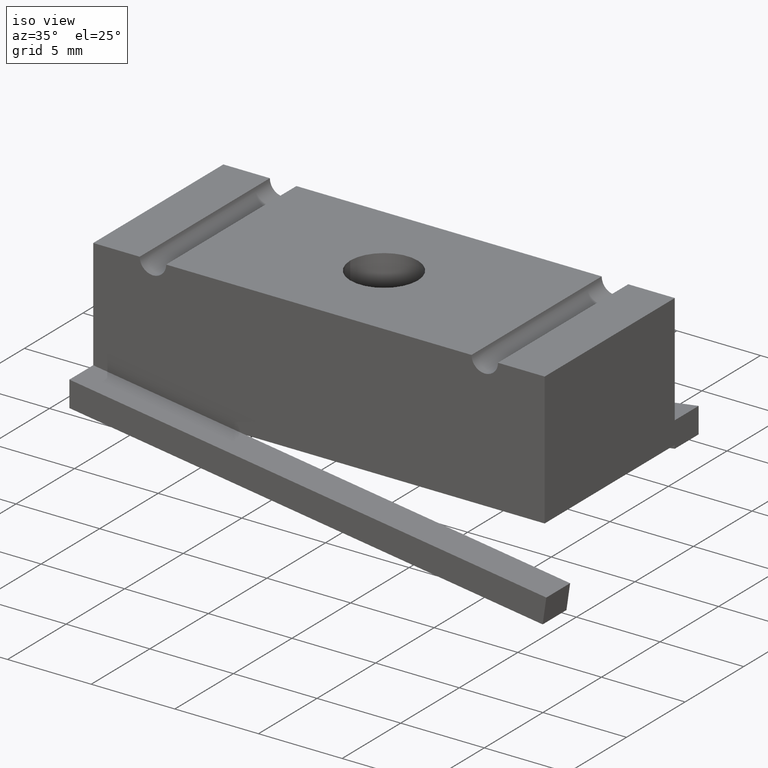
[diagram: clean part render]
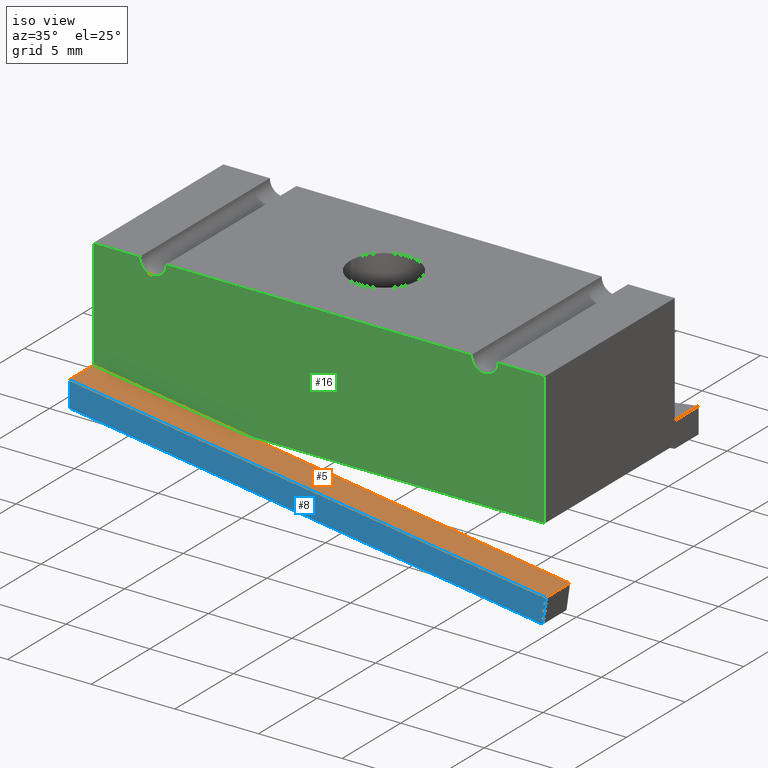
[diagram: same view with three faces highlighted in distinct colors, each labeled with its STEP entity id]
A machine part, iso view with three faces highlighted in distinct colors.
Their STEP definitions:

[orange] entity #5 — the highlighted planar face has unit normal (-0.1441, 0, -0.9896).
#5 = ADVANCED_FACE ( 'NONE', ( #807 ), #298, .F. ) ;
#146 = ORIENTED_EDGE ( 'NONE', *, *, #675, .T. ) ;
#147 = ORIENTED_EDGE ( 'NONE', *, *, #687, .F. ) ;
#149 = ORIENTED_EDGE ( 'NONE', *, *, #672, .F. ) ;
#150 = ORIENTED_EDGE ( 'NONE', *, *, #694, .T. ) ;
#151 = ORIENTED_EDGE ( 'NONE', *, *, #729, .T. ) ;
#194 = EDGE_LOOP ( 'NONE', ( #150, #151, #147, #149, #146 ) ) ;
#264 = VERTEX_POINT ( 'NONE', #392 ) ;
#270 = VERTEX_POINT ( 'NONE', #398 ) ;
#272 = VERTEX_POINT ( 'NONE', #400 ) ;
#282 = VERTEX_POINT ( 'NONE', #410 ) ;
#285 = VERTEX_POINT ( 'NONE', #413 ) ;
#296 = CARTESIAN_POINT ( 'NONE',  ( -0.5312499999999998900, -0.2987499999999999600, -0.2600000000000000100 ) ) ;
#298 = PLANE ( 'NONE',  #735 ) ;
#301 = DIRECTION ( 'NONE',  ( -0.1441360476933149800, 0.0000000000000000000, -0.9895578809525750200 ) ) ;
#302 = DIRECTION ( 'NONE',  ( -0.9895578809525749100, 0.0000000000000000000, 0.1441360476933149500 ) ) ;
#392 = CARTESIAN_POINT ( 'NONE',  ( -0.1708142201834860800, -0.2187499999999999400, -0.3125000000000000000 ) ) ;
#398 = CARTESIAN_POINT ( 'NONE',  ( -0.5312499999999998900, -0.2187499999999999400, -0.2600000000000000100 ) ) ;
#400 = CARTESIAN_POINT ( 'NONE',  ( -0.5312499999999998900, -0.2987499999999999600, -0.2600000000000000100 ) ) ;
#410 = CARTESIAN_POINT ( 'NONE',  ( 0.5912500000000000500, -0.2187499999999999400, -0.4234999999999999900 ) ) ;
#413 = CARTESIAN_POINT ( 'NONE',  ( 0.5912500000000000500, -0.2987499999999999600, -0.4234999999999999900 ) ) ;
#467 = CARTESIAN_POINT ( 'NONE',  ( -0.5312499999999998900, -0.2987499999999999600, -0.2600000000000000100 ) ) ;
#469 = CARTESIAN_POINT ( 'NONE',  ( 0.5912500000000000500, -0.2987499999999999600, -0.4234999999999999900 ) ) ;
#470 = DIRECTION ( 'NONE',  ( -0.9895578809525749100, -0.0000000000000000000, 0.1441360476933149500 ) ) ;
#475 = DIRECTION ( 'NONE',  ( -0.0000000000000000000, 1.000000000000000000, -0.0000000000000000000 ) ) ;
#498 = CARTESIAN_POINT ( 'NONE',  ( -0.5312499999999998900, -0.2987499999999999600, -0.2600000000000000100 ) ) ;
#499 = DIRECTION ( 'NONE',  ( -0.0000000000000000000, 1.000000000000000000, -0.0000000000000000000 ) ) ;
#514 = CARTESIAN_POINT ( 'NONE',  ( -0.5312499999999998900, -0.2187499999999999400, -0.2600000000000000100 ) ) ;
#515 = DIRECTION ( 'NONE',  ( -0.9895578809525749100, -0.0000000000000000000, 0.1441360476933149500 ) ) ;
#548 = DIRECTION ( 'NONE',  ( -0.9895578809525749100, -0.0000000000000000000, 0.1441360476933149500 ) ) ;
#587 = LINE ( 'NONE', #469, #595 ) ;
#591 = VECTOR ( 'NONE', #470, 39.37007874015748900 ) ;
#595 = VECTOR ( 'NONE', #475, 39.37007874015748100 ) ;
#622 = LINE ( 'NONE', #514, #623 ) ;
#623 = VECTOR ( 'NONE', #515, 39.37007874015748900 ) ;
#645 = LINE ( 'NONE', #787, #646 ) ;
#646 = VECTOR ( 'NONE', #548, 39.37007874015748900 ) ;
#672 = EDGE_CURVE ( 'NONE', #285, #272, #781, .T. ) ;
#675 = EDGE_CURVE ( 'NONE', #285, #282, #587, .T. ) ;
#687 = EDGE_CURVE ( 'NONE', #272, #270, #802, .T. ) ;
#694 = EDGE_CURVE ( 'NONE', #282, #264, #622, .T. ) ;
#729 = EDGE_CURVE ( 'NONE', #264, #270, #645, .T. ) ;
#735 = AXIS2_PLACEMENT_3D ( 'NONE', #296, #301, #302 ) ;
#781 = LINE ( 'NONE', #467, #591 ) ;
#787 = CARTESIAN_POINT ( 'NONE',  ( -0.5312499999999998900, -0.2187499999999999400, -0.2600000000000000100 ) ) ;
#802 = LINE ( 'NONE', #498, #803 ) ;
#803 = VECTOR ( 'NONE', #499, 39.37007874015748100 ) ;
#807 = FACE_OUTER_BOUND ( 'NONE', #194, .T. ) ;

[blue] entity #8 — the highlighted planar face has unit normal (0, -1, 0).
#8 = ADVANCED_FACE ( 'NONE', ( #809 ), #308, .T. ) ;
#131 = ORIENTED_EDGE ( 'NONE', *, *, #660, .T. ) ;
#132 = ORIENTED_EDGE ( 'NONE', *, *, #672, .T. ) ;
#142 = ORIENTED_EDGE ( 'NONE', *, *, #686, .T. ) ;
#143 = ORIENTED_EDGE ( 'NONE', *, *, #683, .T. ) ;
#198 = EDGE_LOOP ( 'NONE', ( #142, #143, #131, #132 ) ) ;
#259 = VERTEX_POINT ( 'NONE', #387 ) ;
#272 = VERTEX_POINT ( 'NONE', #400 ) ;
#284 = VERTEX_POINT ( 'NONE', #412 ) ;
#285 = VERTEX_POINT ( 'NONE', #413 ) ;
#303 = CARTESIAN_POINT ( 'NONE',  ( -0.5312499999999997800, -0.2987499999999999600, -0.3206331384499130900 ) ) ;
#308 = PLANE ( 'NONE',  #720 ) ;
#313 = DIRECTION ( 'NONE',  ( 0.0000000000000000000, -1.000000000000000000, 0.0000000000000000000 ) ) ;
#314 = DIRECTION ( 'NONE',  ( 0.0000000000000000000, -0.0000000000000000000, -1.000000000000000000 ) ) ;
#387 = CARTESIAN_POINT ( 'NONE',  ( -0.5312499999999998900, -0.2987499999999999600, -0.3206331384499130900 ) ) ;
#400 = CARTESIAN_POINT ( 'NONE',  ( -0.5312499999999998900, -0.2987499999999999600, -0.2600000000000000100 ) ) ;
#412 = CARTESIAN_POINT ( 'NONE',  ( 0.5826018371384011900, -0.2987499999999999600, -0.4828734728571544800 ) ) ;
#413 = CARTESIAN_POINT ( 'NONE',  ( 0.5912500000000000500, -0.2987499999999999600, -0.4234999999999999900 ) ) ;
#442 = CARTESIAN_POINT ( 'NONE',  ( 0.5912500000000000500, -0.2987499999999999600, -0.4234999999999999900 ) ) ;
#445 = DIRECTION ( 'NONE',  ( 0.1441360476933142800, -0.0000000000000000000, 0.9895578809525749100 ) ) ;
#467 = CARTESIAN_POINT ( 'NONE',  ( -0.5312499999999998900, -0.2987499999999999600, -0.2600000000000000100 ) ) ;
#470 = DIRECTION ( 'NONE',  ( -0.9895578809525749100, -0.0000000000000000000, 0.1441360476933149500 ) ) ;
#489 = CARTESIAN_POINT ( 'NONE',  ( 0.5826018371384011900, -0.2987499999999999600, -0.4828734728571544800 ) ) ;
#490 = DIRECTION ( 'NONE',  ( 0.9895578809525749100, -0.0000000000000000000, -0.1441360476933148100 ) ) ;
#493 = CARTESIAN_POINT ( 'NONE',  ( -0.5312499999999998900, -0.2987499999999999600, -0.3206331384499130900 ) ) ;
#497 = DIRECTION ( 'NONE',  ( -0.0000000000000000000, -0.0000000000000000000, -1.000000000000000000 ) ) ;
#591 = VECTOR ( 'NONE', #470, 39.37007874015748900 ) ;
#601 = LINE ( 'NONE', #493, #800 ) ;
#660 = EDGE_CURVE ( 'NONE', #284, #285, #830, .T. ) ;
#672 = EDGE_CURVE ( 'NONE', #285, #272, #781, .T. ) ;
#683 = EDGE_CURVE ( 'NONE', #259, #284, #794, .T. ) ;
#686 = EDGE_CURVE ( 'NONE', #272, #259, #601, .T. ) ;
#720 = AXIS2_PLACEMENT_3D ( 'NONE', #303, #313, #314 ) ;
#771 = VECTOR ( 'NONE', #445, 39.37007874015748900 ) ;
#781 = LINE ( 'NONE', #467, #591 ) ;
#794 = LINE ( 'NONE', #489, #795 ) ;
#795 = VECTOR ( 'NONE', #490, 39.37007874015748900 ) ;
#800 = VECTOR ( 'NONE', #497, 39.37007874015748100 ) ;
#809 = FACE_OUTER_BOUND ( 'NONE', #198, .T. ) ;
#830 = LINE ( 'NONE', #442, #771 ) ;

[green] entity #16 — the highlighted planar face has unit normal (0, -1, 0).
#16 = ADVANCED_FACE ( 'NONE', ( #47 ), #338, .T. ) ;
#47 = FACE_OUTER_BOUND ( 'NONE', #196, .T. ) ;
#152 = ORIENTED_EDGE ( 'NONE', *, *, #691, .F. ) ;
#156 = ORIENTED_EDGE ( 'NONE', *, *, #670, .F. ) ;
#158 = ORIENTED_EDGE ( 'NONE', *, *, #650, .F. ) ;
#159 = ORIENTED_EDGE ( 'NONE', *, *, #707, .F. ) ;
#160 = ORIENTED_EDGE ( 'NONE', *, *, #662, .F. ) ;
#161 = ORIENTED_EDGE ( 'NONE', *, *, #703, .F. ) ;
#162 = ORIENTED_EDGE ( 'NONE', *, *, #729, .F. ) ;
#163 = ORIENTED_EDGE ( 'NONE', *, *, #682, .T. ) ;
#164 = ORIENTED_EDGE ( 'NONE', *, *, #661, .T. ) ;
#165 = ORIENTED_EDGE ( 'NONE', *, *, #667, .F. ) ;
#166 = ORIENTED_EDGE ( 'NONE', *, *, #709, .F. ) ;
#196 = EDGE_LOOP ( 'NONE', ( #152, #156, #158, #159, #160, #161, #162, #163, #164, #165, #166 ) ) ;
#248 = VERTEX_POINT ( 'NONE', #379 ) ;
#249 = VERTEX_POINT ( 'NONE', #381 ) ;
#253 = VERTEX_POINT ( 'NONE', #383 ) ;
#254 = VERTEX_POINT ( 'NONE', #367 ) ;
#255 = VERTEX_POINT ( 'NONE', #384 ) ;
#260 = VERTEX_POINT ( 'NONE', #388 ) ;
#264 = VERTEX_POINT ( 'NONE', #392 ) ;
#265 = VERTEX_POINT ( 'NONE', #393 ) ;
#268 = VERTEX_POINT ( 'NONE', #396 ) ;
#270 = VERTEX_POINT ( 'NONE', #398 ) ;
#279 = VERTEX_POINT ( 'NONE', #407 ) ;
#336 = CARTESIAN_POINT ( 'NONE',  ( -0.5312499999999998900, -0.2187499999999999400, -0.3125000000000000000 ) ) ;
#338 = PLANE ( 'NONE',  #705 ) ;
#341 = DIRECTION ( 'NONE',  ( 0.0000000000000000000, -1.000000000000000000, 0.0000000000000000000 ) ) ;
#342 = DIRECTION ( 'NONE',  ( 0.0000000000000000000, -0.0000000000000000000, -1.000000000000000000 ) ) ;
#367 = CARTESIAN_POINT ( 'NONE',  ( -0.3906250000000000000, -0.2187499999999999400, -0.03124999999999997900 ) ) ;
#379 = CARTESIAN_POINT ( 'NONE',  ( 0.3903750000000000800, -0.2187499999999999400, -0.03124999999999997900 ) ) ;
#381 = CARTESIAN_POINT ( 'NONE',  ( 0.4216249999999999700, -0.2187499999999999400, 0.0000000000000000000 ) ) ;
#383 = CARTESIAN_POINT ( 'NONE',  ( -0.3593750000000000600, -0.2187499999999999400, 0.0000000000000000000 ) ) ;
#384 = CARTESIAN_POINT ( 'NONE',  ( -0.5312499999999998900, -0.2187499999999999400, 0.0000000000000000000 ) ) ;
#388 = CARTESIAN_POINT ( 'NONE',  ( 0.5312500000000001100, -0.2187499999999999400, -0.3125000000000000000 ) ) ;
#392 = CARTESIAN_POINT ( 'NONE',  ( -0.1708142201834860800, -0.2187499999999999400, -0.3125000000000000000 ) ) ;
#393 = CARTESIAN_POINT ( 'NONE',  ( 0.5312500000000001100, -0.2187499999999999400, 0.0000000000000000000 ) ) ;
#396 = CARTESIAN_POINT ( 'NONE',  ( -0.4218750000000000000, -0.2187499999999999400, 0.0000000000000000000 ) ) ;
#398 = CARTESIAN_POINT ( 'NONE',  ( -0.5312499999999998900, -0.2187499999999999400, -0.2600000000000000100 ) ) ;
#407 = CARTESIAN_POINT ( 'NONE',  ( 0.3591250000000000800, -0.2187499999999999400, 0.0000000000000000000 ) ) ;
#423 = CARTESIAN_POINT ( 'NONE',  ( -0.3906250000000000000, -0.2187499999999999400, 0.0000000000000000000 ) ) ;
#424 = DIRECTION ( 'NONE',  ( 0.0000000000000000000, -1.000000000000000000, 0.0000000000000000000 ) ) ;
#425 = DIRECTION ( 'NONE',  ( 0.0000000000000000000, 0.0000000000000000000, -1.000000000000000000 ) ) ;
#444 = CARTESIAN_POINT ( 'NONE',  ( 0.5312500000000001100, -0.2187499999999999400, -0.3125000000000000000 ) ) ;
#446 = CARTESIAN_POINT ( 'NONE',  ( -0.5312499999999998900, -0.2187499999999999400, 0.0000000000000000000 ) ) ;
#448 = DIRECTION ( 'NONE',  ( 0.0000000000000000000, 0.0000000000000000000, 1.000000000000000000 ) ) ;
#450 = DIRECTION ( 'NONE',  ( 1.000000000000000000, 0.0000000000000000000, 0.0000000000000000000 ) ) ;
#459 = CARTESIAN_POINT ( 'NONE',  ( -0.5312499999999998900, -0.2187499999999999400, 0.0000000000000000000 ) ) ;
#460 = DIRECTION ( 'NONE',  ( 1.000000000000000000, 0.0000000000000000000, 0.0000000000000000000 ) ) ;
#465 = CARTESIAN_POINT ( 'NONE',  ( -0.5312499999999998900, -0.2187499999999999400, 0.0000000000000000000 ) ) ;
#466 = DIRECTION ( 'NONE',  ( 1.000000000000000000, 0.0000000000000000000, 0.0000000000000000000 ) ) ;
#473 = CARTESIAN_POINT ( 'NONE',  ( -0.5312499999999998900, -0.2187499999999999400, -0.3125000000000000000 ) ) ;
#488 = DIRECTION ( 'NONE',  ( 1.000000000000000000, 0.0000000000000000000, 0.0000000000000000000 ) ) ;
#494 = CARTESIAN_POINT ( 'NONE',  ( 0.3903750000000000800, -0.2187499999999999400, 0.0000000000000000000 ) ) ;
#508 = DIRECTION ( 'NONE',  ( 0.0000000000000000000, -1.000000000000000000, 0.0000000000000000000 ) ) ;
#509 = DIRECTION ( 'NONE',  ( 0.0000000000000000000, 0.0000000000000000000, -1.000000000000000000 ) ) ;
#521 = CARTESIAN_POINT ( 'NONE',  ( -0.3906250000000000000, -0.2187499999999999400, 0.0000000000000000000 ) ) ;
#526 = CARTESIAN_POINT ( 'NONE',  ( 0.3903750000000000800, -0.2187499999999999400, 0.0000000000000000000 ) ) ;
#533 = CARTESIAN_POINT ( 'NONE',  ( -0.5312499999999998900, -0.2187499999999999400, -0.3125000000000000000 ) ) ;
#534 = DIRECTION ( 'NONE',  ( 0.0000000000000000000, 0.0000000000000000000, 1.000000000000000000 ) ) ;
#538 = DIRECTION ( 'NONE',  ( 0.0000000000000000000, -1.000000000000000000, 0.0000000000000000000 ) ) ;
#539 = DIRECTION ( 'NONE',  ( 0.0000000000000000000, 0.0000000000000000000, -1.000000000000000000 ) ) ;
#540 = DIRECTION ( 'NONE',  ( 0.0000000000000000000, -1.000000000000000000, 0.0000000000000000000 ) ) ;
#541 = DIRECTION ( 'NONE',  ( 0.0000000000000000000, 0.0000000000000000000, -1.000000000000000000 ) ) ;
#548 = DIRECTION ( 'NONE',  ( -0.9895578809525749100, -0.0000000000000000000, 0.1441360476933149500 ) ) ;
#588 = LINE ( 'NONE', #465, #589 ) ;
#589 = VECTOR ( 'NONE', #466, 39.37007874015748100 ) ;
#619 = CIRCLE ( 'NONE', #721, 0.03124999999999997900 ) ;
#635 = LINE ( 'NONE', #533, #636 ) ;
#636 = VECTOR ( 'NONE', #534, 39.37007874015748100 ) ;
#641 = CIRCLE ( 'NONE', #697, 0.03124999999999997900 ) ;
#643 = CIRCLE ( 'NONE', #759, 0.03124999999999997900 ) ;
#645 = LINE ( 'NONE', #787, #646 ) ;
#646 = VECTOR ( 'NONE', #548, 39.37007874015748900 ) ;
#650 = EDGE_CURVE ( 'NONE', #254, #253, #818, .T. ) ;
#661 = EDGE_CURVE ( 'NONE', #260, #265, #768, .T. ) ;
#662 = EDGE_CURVE ( 'NONE', #255, #268, #770, .T. ) ;
#667 = EDGE_CURVE ( 'NONE', #249, #265, #784, .T. ) ;
#670 = EDGE_CURVE ( 'NONE', #253, #279, #588, .T. ) ;
#682 = EDGE_CURVE ( 'NONE', #264, #260, #788, .T. ) ;
#691 = EDGE_CURVE ( 'NONE', #279, #248, #619, .T. ) ;
#697 = AXIS2_PLACEMENT_3D ( 'NONE', #521, #538, #539 ) ;
#703 = EDGE_CURVE ( 'NONE', #270, #255, #635, .T. ) ;
#705 = AXIS2_PLACEMENT_3D ( 'NONE', #336, #341, #342 ) ;
#707 = EDGE_CURVE ( 'NONE', #268, #254, #641, .T. ) ;
#709 = EDGE_CURVE ( 'NONE', #248, #249, #643, .T. ) ;
#711 = AXIS2_PLACEMENT_3D ( 'NONE', #423, #424, #425 ) ;
#721 = AXIS2_PLACEMENT_3D ( 'NONE', #494, #508, #509 ) ;
#729 = EDGE_CURVE ( 'NONE', #264, #270, #645, .T. ) ;
#759 = AXIS2_PLACEMENT_3D ( 'NONE', #526, #540, #541 ) ;
#768 = LINE ( 'NONE', #444, #773 ) ;
#770 = LINE ( 'NONE', #446, #775 ) ;
#773 = VECTOR ( 'NONE', #448, 39.37007874015748100 ) ;
#775 = VECTOR ( 'NONE', #450, 39.37007874015748100 ) ;
#784 = LINE ( 'NONE', #459, #785 ) ;
#785 = VECTOR ( 'NONE', #460, 39.37007874015748100 ) ;
#787 = CARTESIAN_POINT ( 'NONE',  ( -0.5312499999999998900, -0.2187499999999999400, -0.2600000000000000100 ) ) ;
#788 = LINE ( 'NONE', #473, #792 ) ;
#792 = VECTOR ( 'NONE', #488, 39.37007874015748100 ) ;
#818 = CIRCLE ( 'NONE', #711, 0.03124999999999997900 ) ;